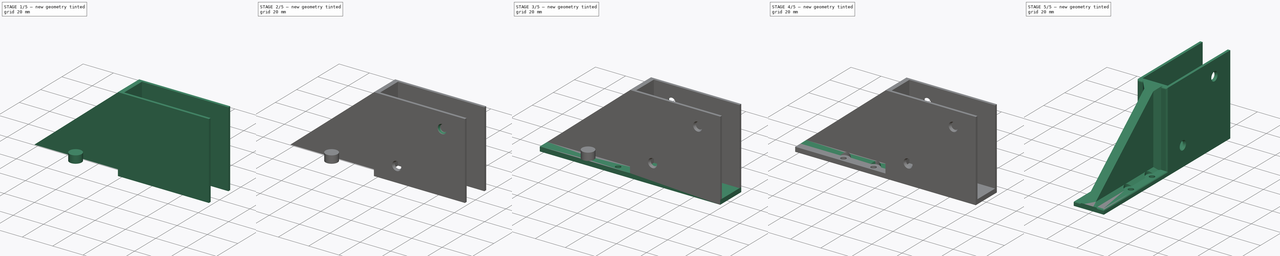
[diagram: build sequence overview — one tinted view per stage of 5, left to right]
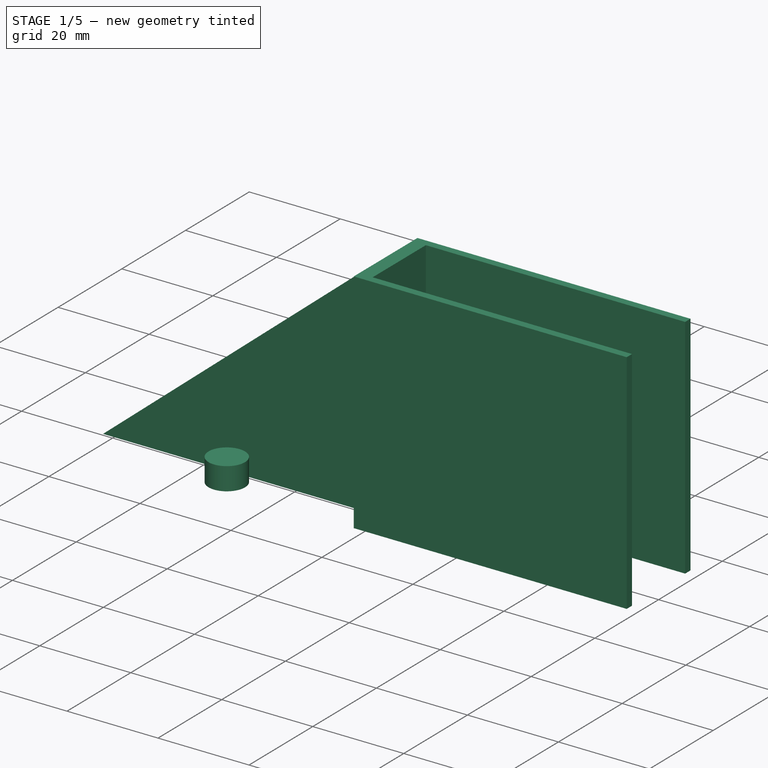
[diagram: stage 1 of 5 — iso view after this stage's code; geometry added in this stage tinted green]
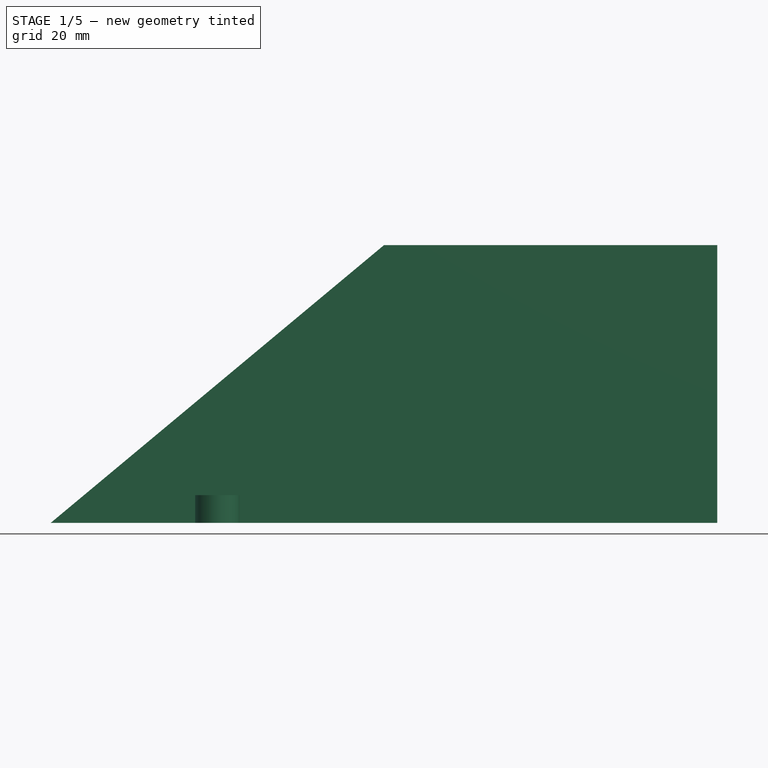
[diagram: stage 1 of 5 — front view after this stage's code; geometry added in this stage tinted green]
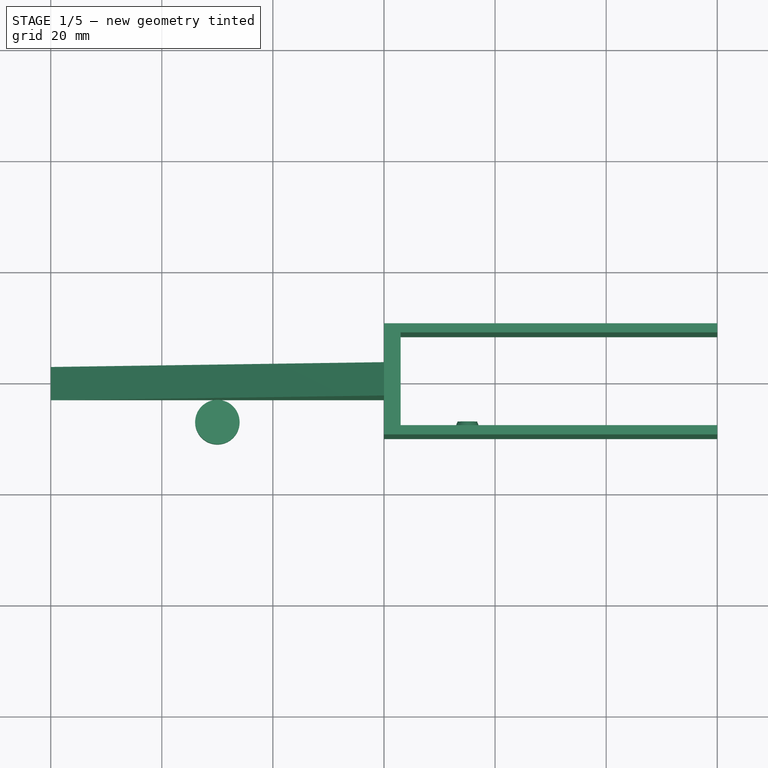
[diagram: stage 1 of 5 — top view after this stage's code; geometry added in this stage tinted green]
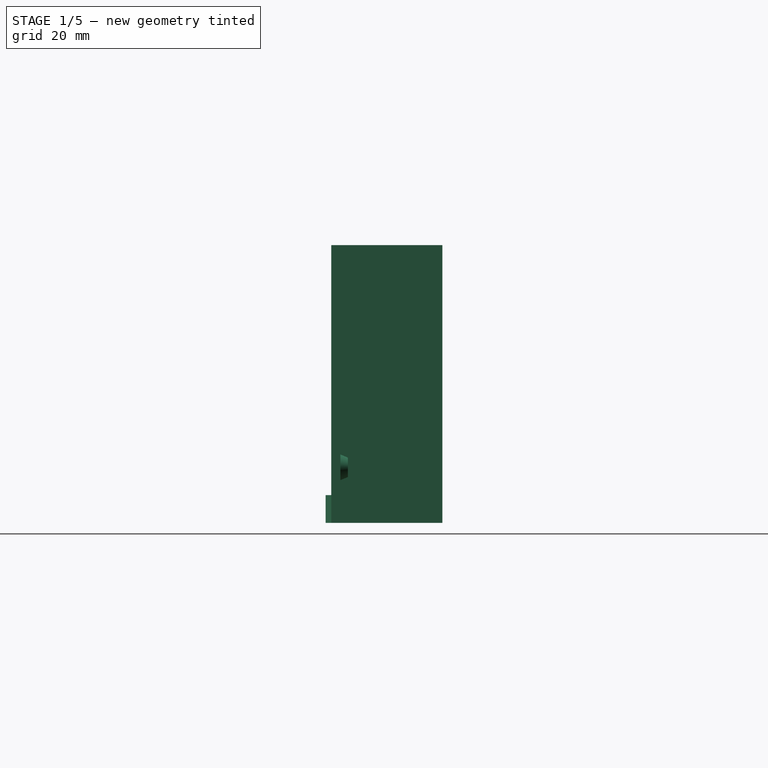
[diagram: stage 1 of 5 — right view after this stage's code; geometry added in this stage tinted green]
FCSTD DOCUMENT  (FreeCAD 0.15R4671 (Git))
Label: triangles
License: All rights reserved
LicenseURL: http://en.wikipedia.org/wiki/All_rights_reserved
objects: Part::Cut×8, Part::Cone×4, Part::Cylinder×4, Sketcher::SketchObject×3, Part::Box×2, PartDesign::Pocket×2, Part::Chamfer×2, PartDesign::Pad×1, Part::MultiFuse×1, Part::Fillet×1
note: 31 computed .brp shape members not serialized (recipe doc carries the construction recipe); baked Part::Feature solids carry a one-line shape summary decoded from their .brp

FEATURE [Part::Box] Box001  label="abraça-fusta"
  Height = 50
  Length = 60
  Placement = pos=(60,-10,3) rot=(0,0,1;0rad)
  Width = 20
FEATURE [Sketcher::SketchObject] Sketch001
  ExternalGeometry = -> [Box001]
  Placement = pos=(60,-10,53) rot=(0,0,1;0rad)
  Support = -> Box001 [Face6]
  sketch-geometry (5):
    g0: LineSegment StartX=3 StartY=18.35 StartZ=0 EndX=3 EndY=1.65 EndZ=0
    g1: LineSegment StartX=3 StartY=18.35 StartZ=0 EndX=60 EndY=18.35 EndZ=0
    g2: LineSegment StartX=60 StartY=18.35 StartZ=0 EndX=60 EndY=1.65 EndZ=0
    g3: LineSegment StartX=3 StartY=1.65 StartZ=0 EndX=60 EndY=1.65 EndZ=0
    g4: LineSegment [constr] StartX=0 StartY=10 StartZ=0 EndX=60 EndY=10 EndZ=0
  constraints (16):
    c: Vertical(g0)
    c: PointOnObject(g1,g-3)
    c: Coincident(g2,g1)
    c: PointOnObject(g2,g-3)
    c: Coincident(g1,g0)
    c: Coincident(g3,g0)
    c: Coincident(g3,g2)
    c: Horizontal(g3)
    c: Parallel(g1,g3)
    c: Equal(g4,g-4)
    c: PointOnObject(g4,g-2)
    c: Horizontal(g4)
    c: DistanceY(g4,g-4) = 10
    c: Symmetric(g0,g0,g4)
    c: DistanceY(g0,g0) = -16.7
    c: DistanceX(g-1,g0) = 3
FEATURE [PartDesign::Pocket] Pocket001
  Length = 5
  Placement = pos=(60,-10,3) rot=(0,0,1;0rad)
  Sketch = -> Sketch001
  Type = 2
FEATURE [Part::Cone] Cone  label="Cone-forat-M3-001"
  Angle = 360
  Height = 3
  Placement = pos=(75,-10,13) rot=(-1,0,0;1.5708rad)
  Radius1 = 3
  Radius2 = 1.75
FEATURE [Sketcher::SketchObject] Sketch002  label="Sketch-triangle"
  Placement = pos=(0,3,0) rot=(1,0,0;1.5708rad)
  sketch-geometry (3):
    g0: LineSegment StartX=0 StartY=3 StartZ=0 EndX=60 EndY=53 EndZ=0
    g1: LineSegment StartX=60 StartY=53 StartZ=0 EndX=60 EndY=3 EndZ=0
    g2: LineSegment StartX=0 StartY=3 StartZ=0 EndX=60 EndY=3 EndZ=0
  constraints (9):
    c: Coincident(g2,g1)
    c: Coincident(g1,g0)
    c: Vertical(g1)
    c: Horizontal(g2)
    c: Coincident(g2,g0)
    c: DistanceX(g2) = 60
    c: DistanceY(g1) = -50
    c: PointOnObject(g0,g-2)
    c: DistanceY(g-1,g0) = 3
FEATURE [PartDesign::Pad] Pad  label="triangle"
  Length = 6
  Length2 = 100
  Placement = pos=(0,3,0) rot=(1,0,0;1.5708rad)
  Sketch = -> Sketch002
  Type = 0
FEATURE [Part::Cylinder] Cylinder  label="cyl-espai-arandela-001"
  Angle = 360
  Height = 5
  Placement = pos=(30,-7,3) rot=(0,0,1;0rad)
  Radius = 4
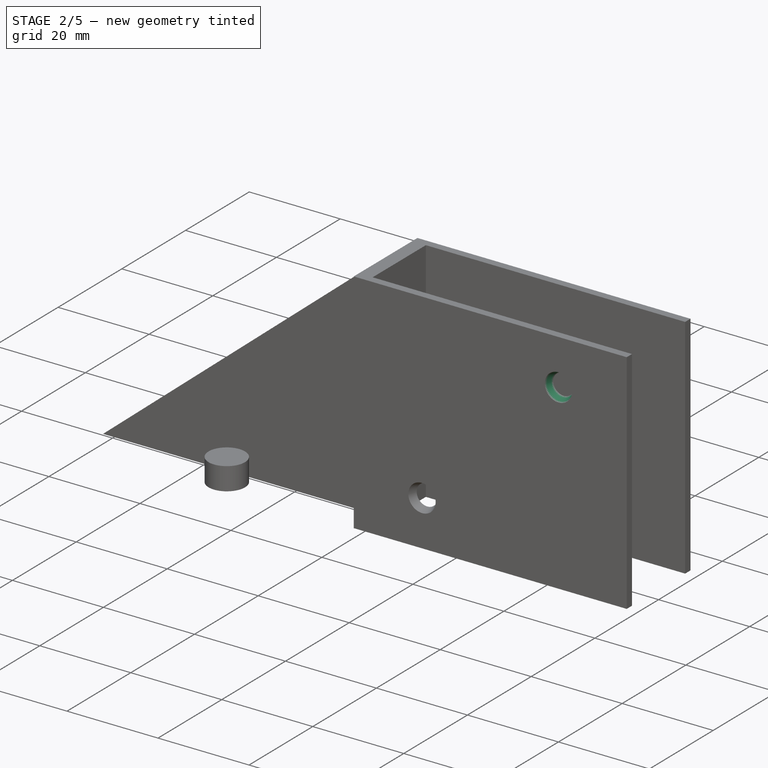
[diagram: stage 2 of 5 — iso view after this stage's code; geometry added in this stage tinted green]
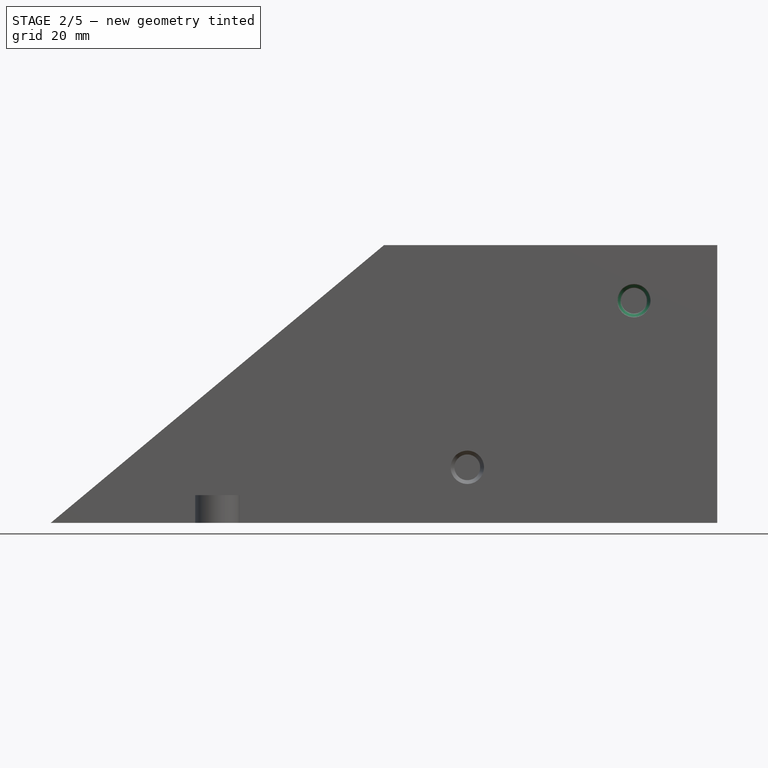
[diagram: stage 2 of 5 — front view after this stage's code; geometry added in this stage tinted green]
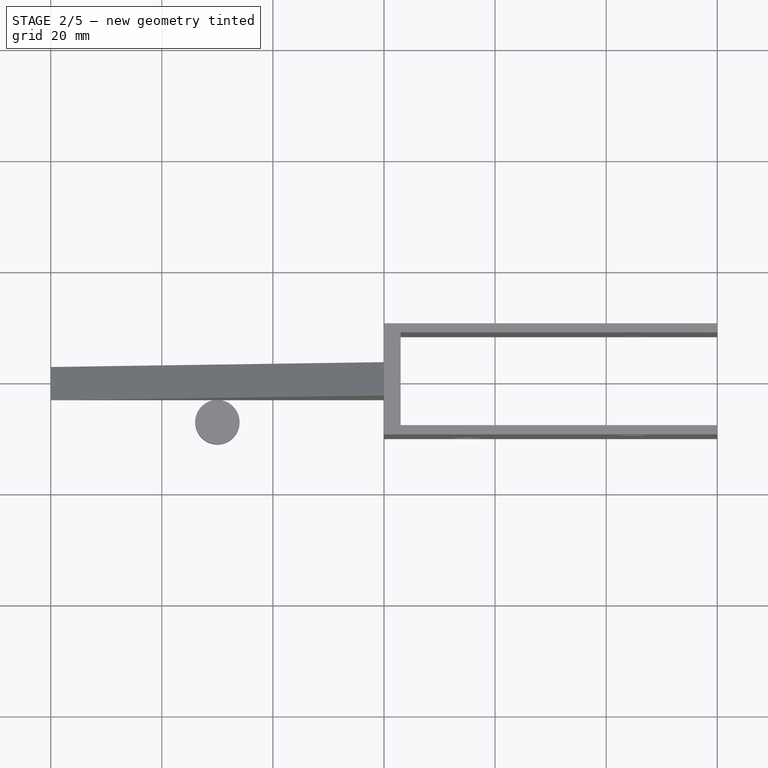
[diagram: stage 2 of 5 — top view after this stage's code; geometry added in this stage tinted green]
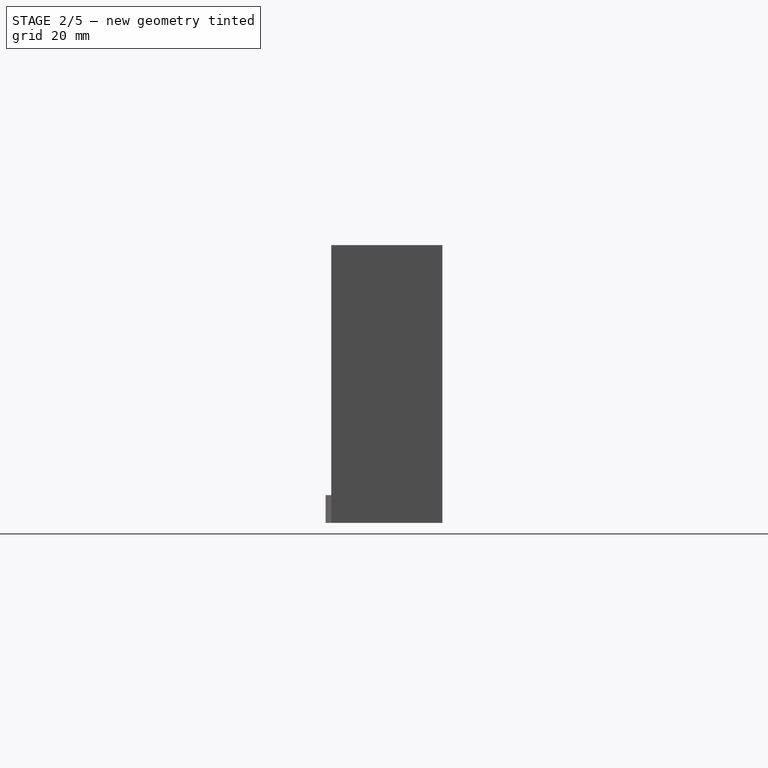
[diagram: stage 2 of 5 — right view after this stage's code; geometry added in this stage tinted green]
FEATURE [Part::Cone] Cone001  label="Cone-forat-M3-002"
  Angle = 360
  Height = 3
  Placement = pos=(105,-10,43) rot=(-1,0,0;1.5708rad)
  Radius1 = 3
  Radius2 = 1.75
FEATURE [Part::Cone] Cone002  label="Cone-forat-M3-003"
  Angle = 360
  Height = 3
  Placement = pos=(105,10,13) rot=(1,0,0;1.5708rad)
  Radius1 = 3
  Radius2 = 1.75
FEATURE [Part::Cut] Cut
  Base = -> Pocket001
  Tool = -> Cone
FEATURE [Part::Cut] Cut001
  Base = -> Cut
  Tool = -> Cone001
FEATURE [Part::Cut] Cut002
  Base = -> Cut001
  Tool = -> Cone002
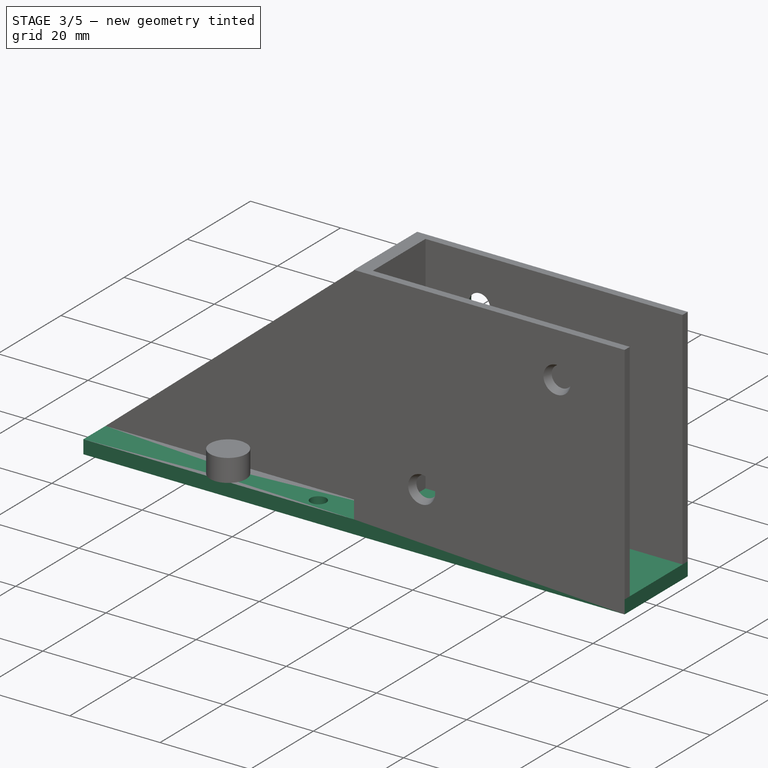
[diagram: stage 3 of 5 — iso view after this stage's code; geometry added in this stage tinted green]
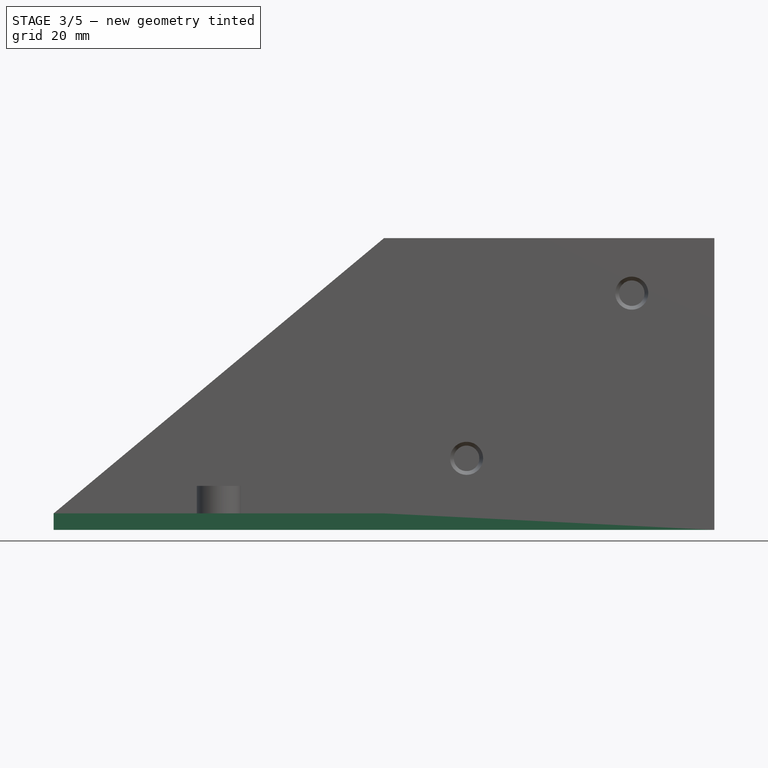
[diagram: stage 3 of 5 — front view after this stage's code; geometry added in this stage tinted green]
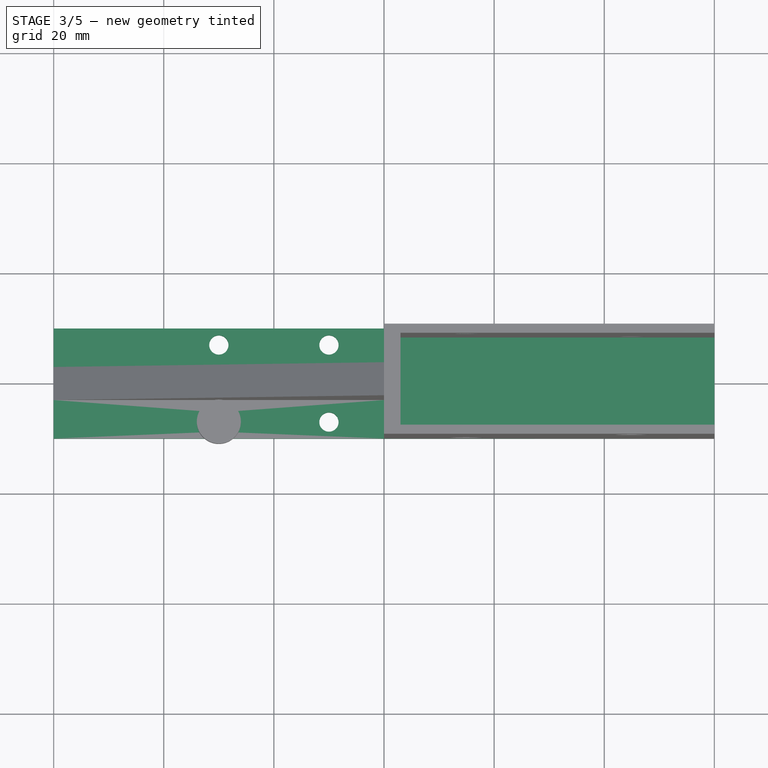
[diagram: stage 3 of 5 — top view after this stage's code; geometry added in this stage tinted green]
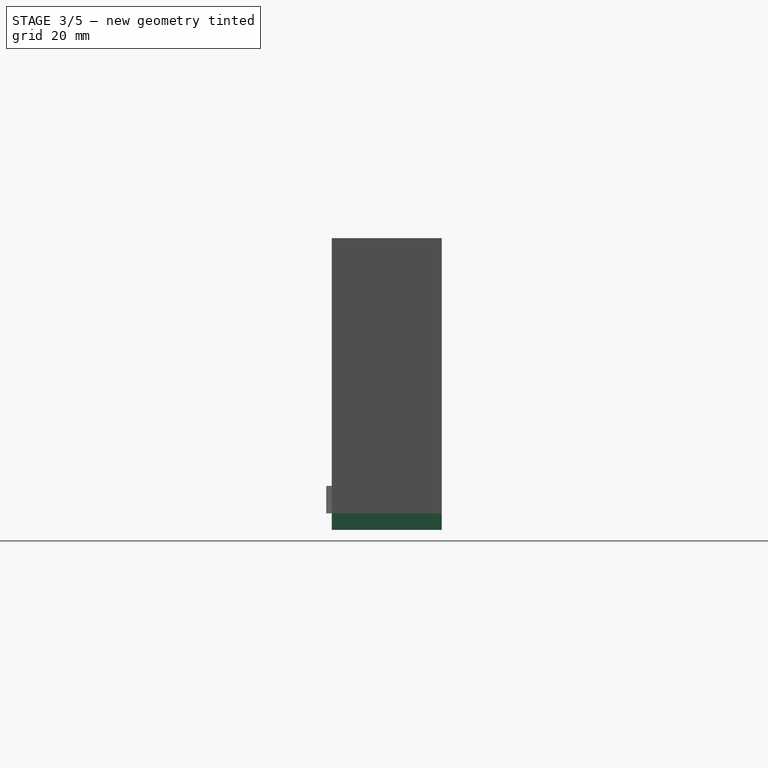
[diagram: stage 3 of 5 — right view after this stage's code; geometry added in this stage tinted green]
FEATURE [Part::Box] Box  label="base"
  Height = 3
  Length = 120
  Placement = pos=(0,-10,0) rot=(0,0,1;0rad)
  Width = 20
FEATURE [Sketcher::SketchObject] Sketch  label="Sketch-forats-base"
  ExternalGeometry = -> [Box]
  Placement = pos=(0,-10,3) rot=(0,0,1;0rad)
  Support = -> Box [Face6]
  sketch-geometry (5):
    g0: Circle CenterX=30 CenterY=17 CenterZ=0 NormalX=0 NormalY=0 NormalZ=1 Radius=1.75
    g1: Circle CenterX=30 CenterY=3 CenterZ=0 NormalX=0 NormalY=0 NormalZ=1 Radius=1.75
    g2: Circle CenterX=50 CenterY=17 CenterZ=0 NormalX=0 NormalY=0 NormalZ=1 Radius=1.75
    g3: Circle CenterX=50 CenterY=3 CenterZ=0 NormalX=0 NormalY=0 NormalZ=1 Radius=1.75
    g4: LineSegment [constr] StartX=0 StartY=10 StartZ=0 EndX=120 EndY=10 EndZ=0
  constraints (14):
    c: Radius(g0) = 1.75
    c: Equal(g1,g0)
    c: Equal(g0,g2)
    c: Equal(g0,g3)
    c: DistanceX(g-1,g0) = 30
    c: DistanceY(g-3,g0) = -3
    c: Equal(g4,g-3)
    c: PointOnObject(g4,g-2)
    c: Parallel(g4,g-3)
    c: DistanceY(g4,g-3) = 10
    c: Symmetric(g0,g1,g4)
    c: DistanceX(g0,g2) = 20
    c: DistanceY(g2,g-3) = 3
    c: Symmetric(g2,g3,g4)
FEATURE [PartDesign::Pocket] Pocket  label="base-amb-forats"
  Length = 5
  Placement = pos=(0,-10,0) rot=(0,0,1;0rad)
  Sketch = -> Sketch
  Type = 1
FEATURE [Part::Cone] Cone003  label="Cone-forat-M3-004"
  Angle = 360
  Height = 3
  Placement = pos=(75,10,43) rot=(1,0,0;1.5708rad)
  Radius1 = 3
  Radius2 = 1.75
FEATURE [Part::Cut] Cut003  label="abraça-fusta-amb-forats"
  Base = -> Cut002
  Tool = -> Cone003
FEATURE [Part::MultiFuse] Fusion  label="peça-no-arrod"
  Shapes = -> [Pocket,Cut003,Pad]
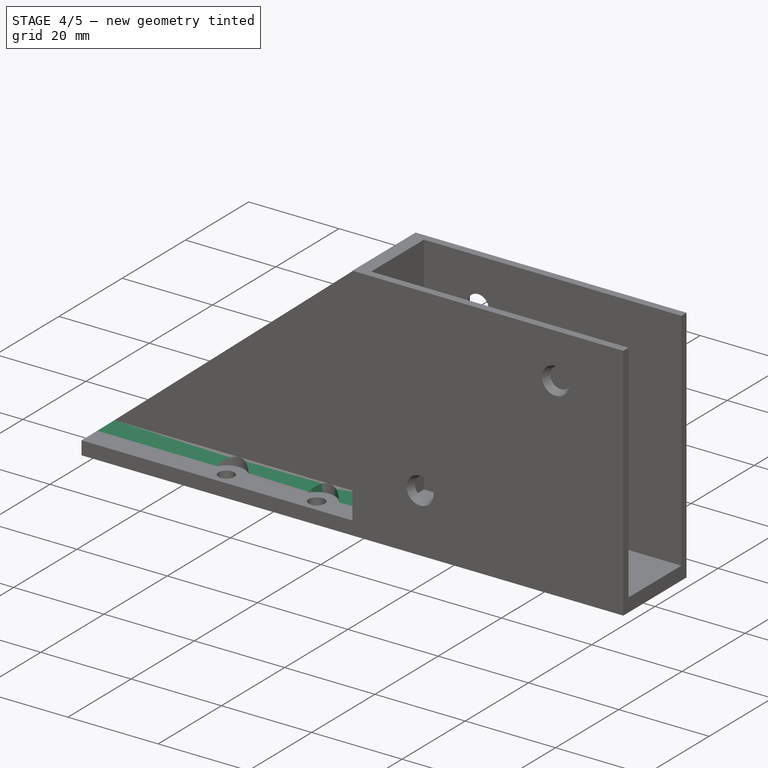
[diagram: stage 4 of 5 — iso view after this stage's code; geometry added in this stage tinted green]
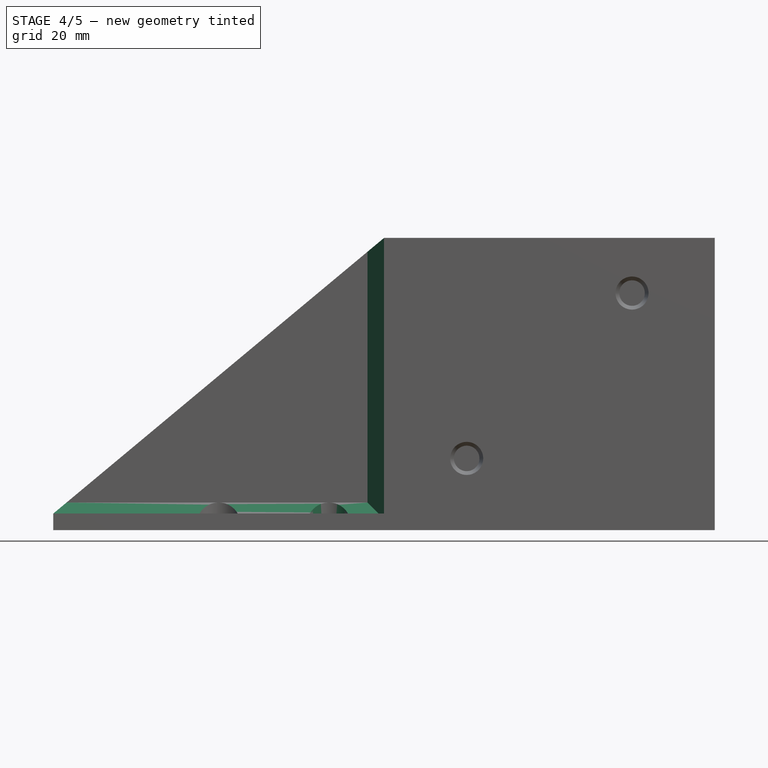
[diagram: stage 4 of 5 — front view after this stage's code; geometry added in this stage tinted green]
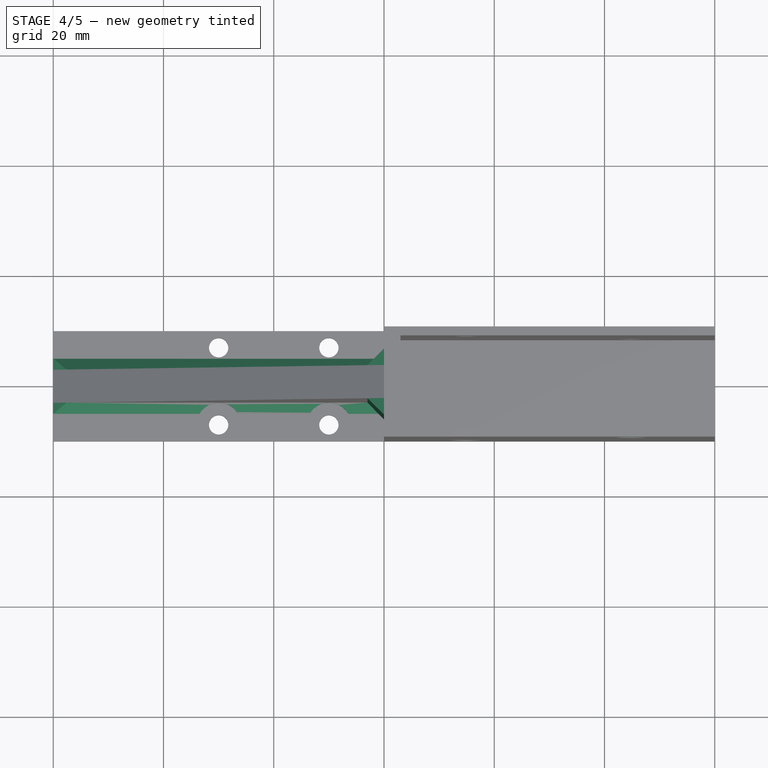
[diagram: stage 4 of 5 — top view after this stage's code; geometry added in this stage tinted green]
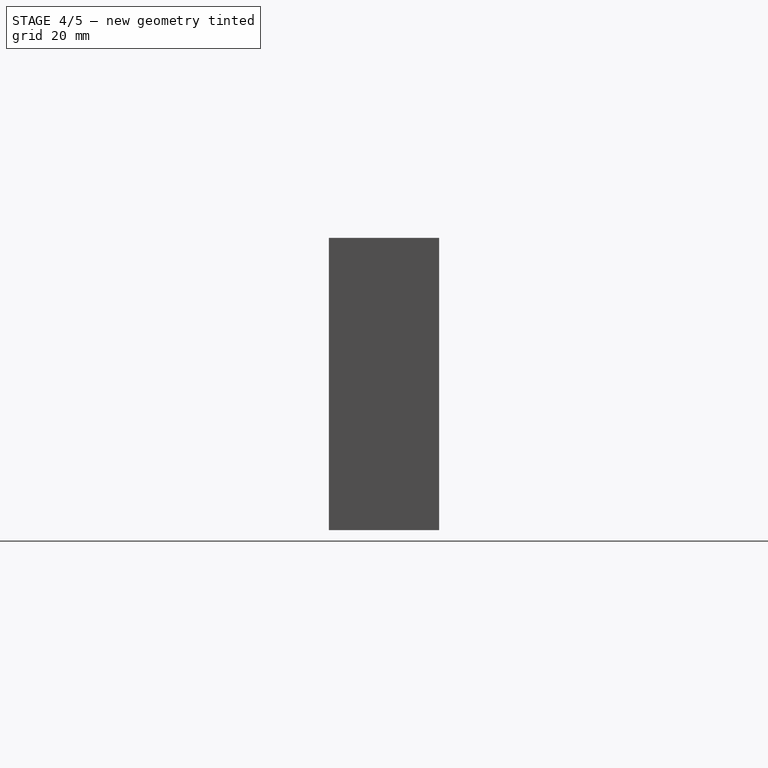
[diagram: stage 4 of 5 — right view after this stage's code; geometry added in this stage tinted green]
FEATURE [Part::Chamfer] Chamfer
  Base = -> Fusion
  Edges = 2 edges r=3: [Edge32,Edge58]
FEATURE [Part::Chamfer] Chamfer001
  Base = -> Chamfer
  Edges = 2 edges r=2: [Edge1,Edge47]
FEATURE [Part::Cylinder] Cylinder001  label="cyl-espai-arandela-002"
  Angle = 360
  Height = 5
  Placement = pos=(50,-7,3) rot=(0,0,1;0rad)
  Radius = 4
FEATURE [Part::Cut] Cut004
  Base = -> Chamfer001
  Tool = -> Cylinder
FEATURE [Part::Cut] Cut005
  Base = -> Cut004
  Tool = -> Cylinder001
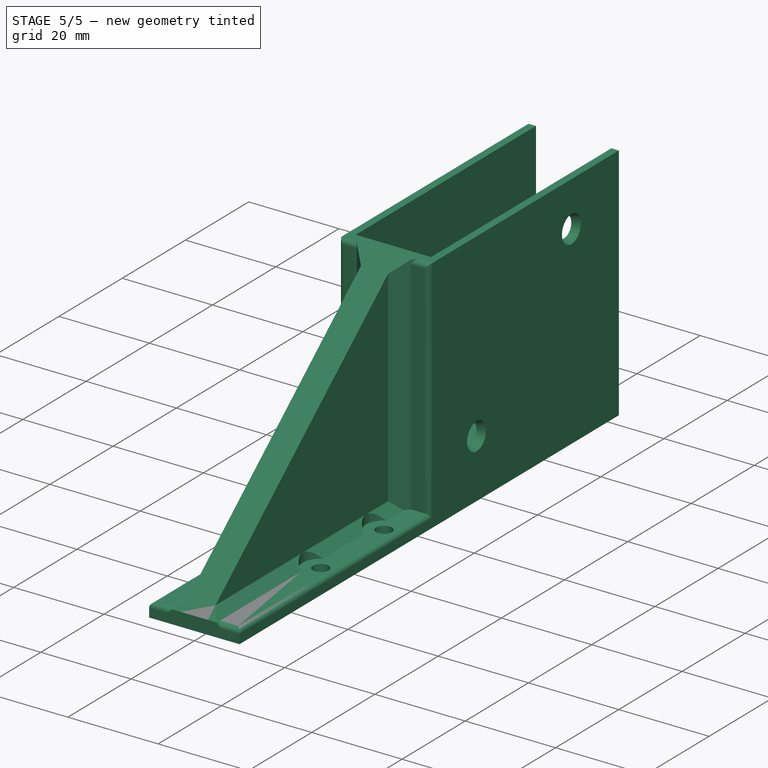
[diagram: stage 5 of 5 — iso view after this stage's code; geometry added in this stage tinted green]
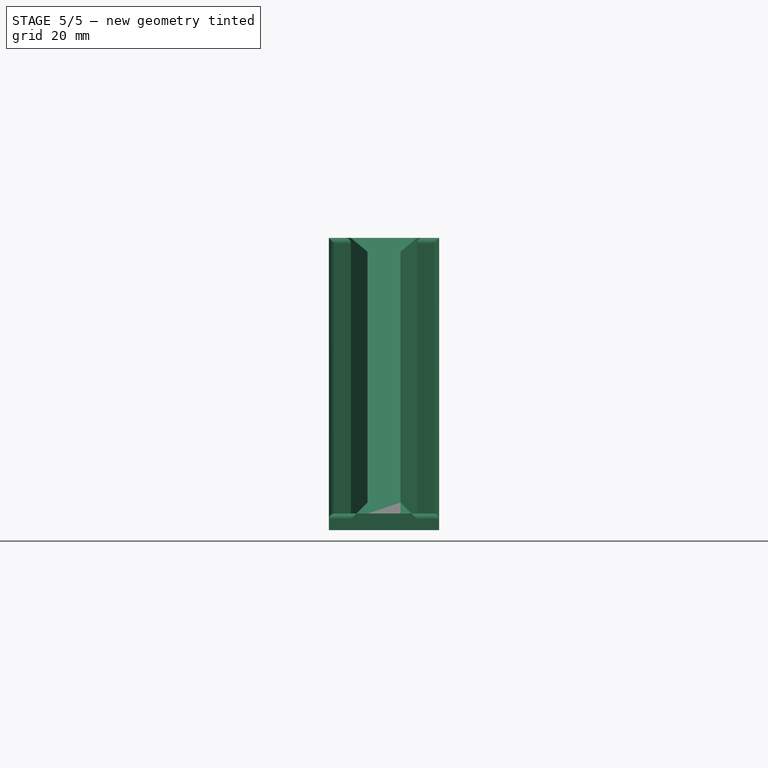
[diagram: stage 5 of 5 — front view after this stage's code; geometry added in this stage tinted green]
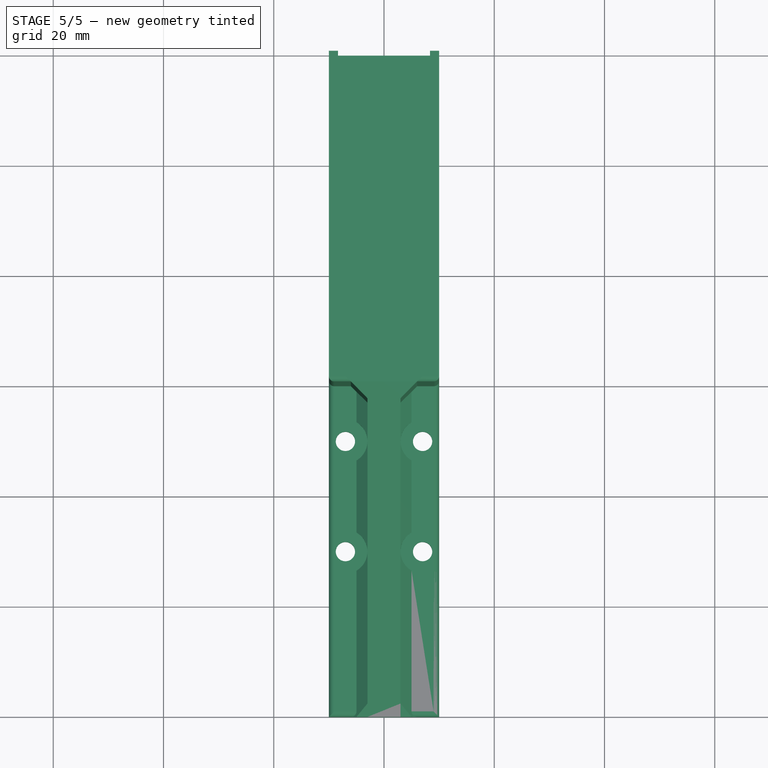
[diagram: stage 5 of 5 — top view after this stage's code; geometry added in this stage tinted green]
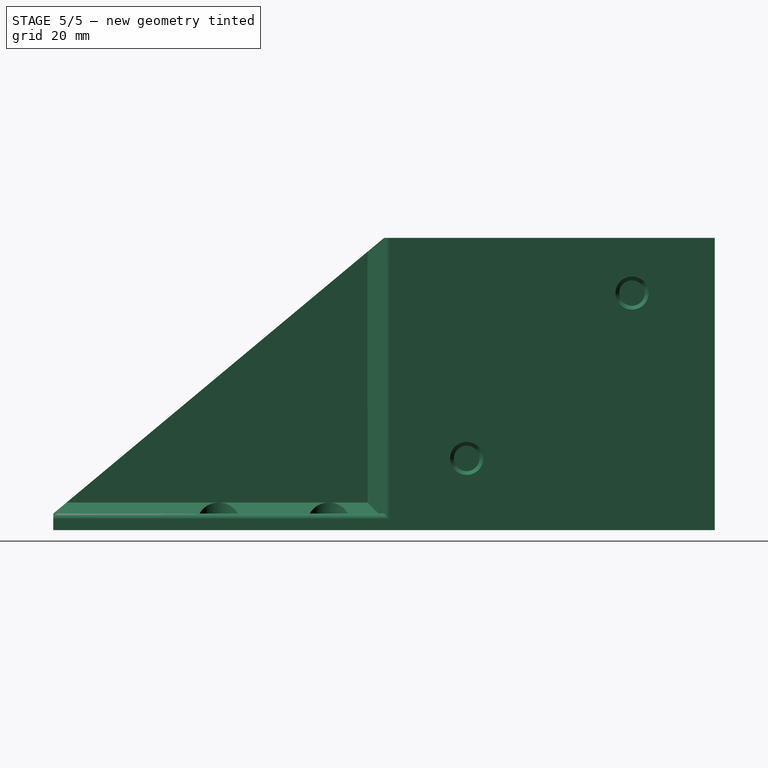
[diagram: stage 5 of 5 — right view after this stage's code; geometry added in this stage tinted green]
FEATURE [Part::Cylinder] Cylinder002  label="cyl-espai-arandela-003"
  Angle = 360
  Height = 5
  Placement = pos=(30,7,3) rot=(0,0,1;0rad)
  Radius = 4
FEATURE [Part::Cylinder] Cylinder003  label="cyl-espai-arandela-004"
  Angle = 360
  Height = 5
  Placement = pos=(50,7,3) rot=(0,0,1;0rad)
  Radius = 4
FEATURE [Part::Cut] Cut006
  Base = -> Cut005
  Tool = -> Cylinder002
FEATURE [Part::Cut] Cut007
  Base = -> Cut006
  Tool = -> Cylinder003
FEATURE [Part::Fillet] Fillet  label="triangle-y"
  Base = -> Cut007
  Edges = 12 edges r=1: [Edge28,Edge29,Edge31,Edge33,Edge37,Edge38,Edge56,Edge57,Edge80,Edge88,Edge90,Edge91]
  Placement = pos=(0,0,0) rot=(0,0,1;1.5708rad)
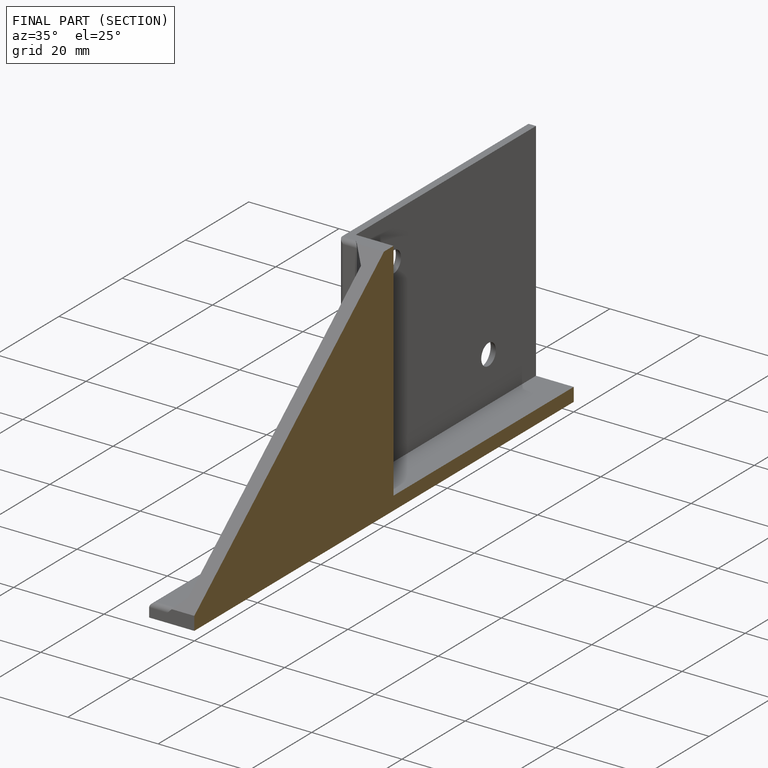
[diagram: finished part — half-section view (interior)]
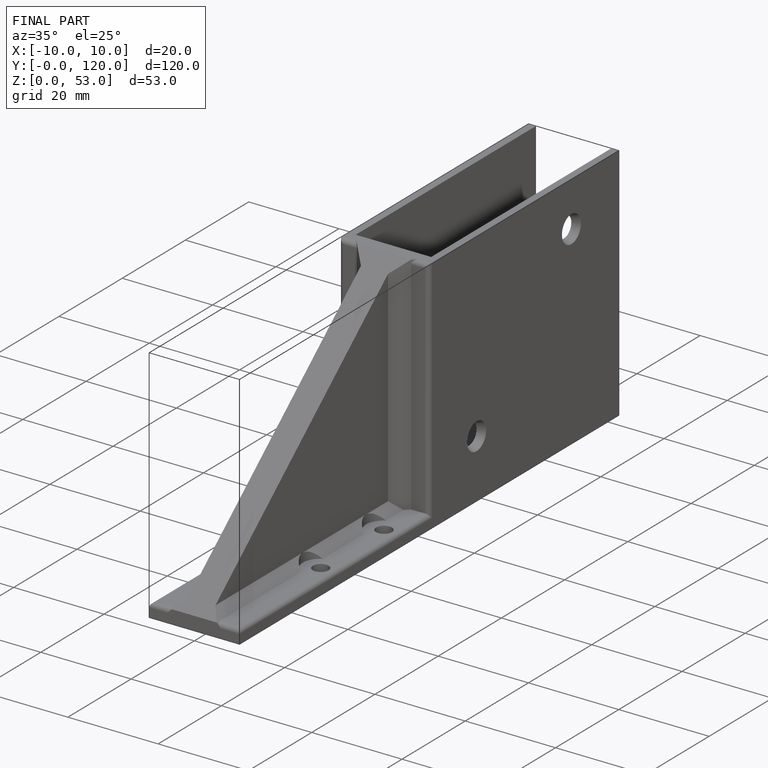
[diagram: finished part — iso view with bounding-box wireframe]
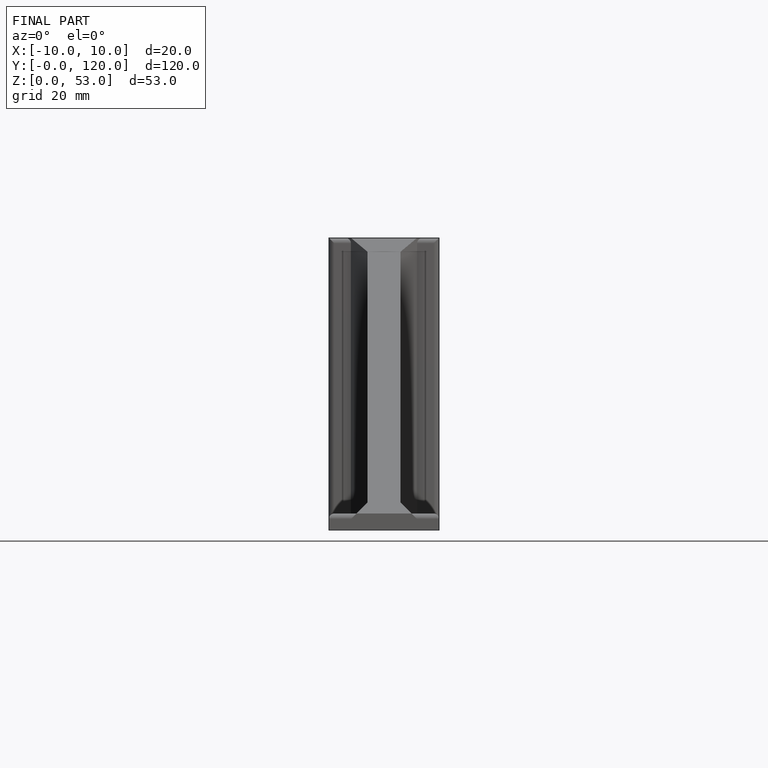
[diagram: finished part — front view with bounding-box wireframe]
